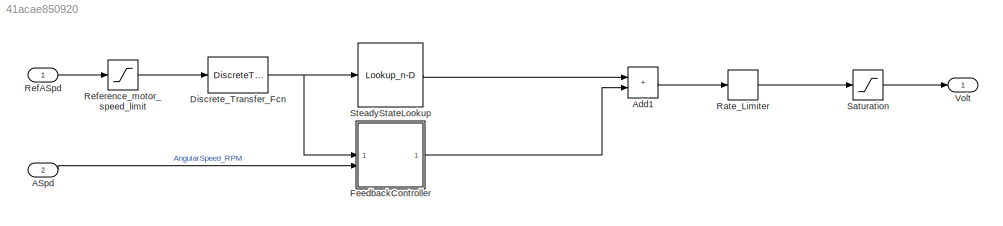
MODEL slx_41acae850920
KIND model
CONFIG AbsTol = auto
CONFIG EnableMultiTasking = off
CONFIG FixedStep = 0.001
CONFIG MaxStep = 0.001
CONFIG MinStep = auto
CONFIG RelTol = 1e-5
CONFIG SampleTimeConstraint = Unconstrained
CONFIG SolverName = FixedStepDiscrete
CONFIG StartTime = 0.0
CONFIG StopTime = 120
BLOCK [Inport] ASpd
  OutDataTypeStr = double
  OutMax = 6000
  OutMin = -6000
  Port = 2
  PortDimensions = 1
  SampleTime = 0.001
  SamplingMode = Sample based
  SignalType = real
BLOCK [Sum] Add1
  IconShape = rectangular
BLOCK [DiscreteTransferFcn] Discrete_Transfer_Fcn
  Denominator = [1,-0.367879441171442]
  InputPortMap = u0
  Numerator = [0.367879441171442,0.264241117657115]
  SampleTime = 0.001
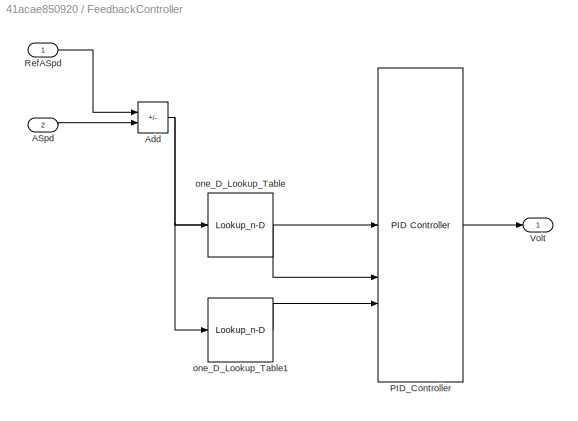
BLOCK [SubSystem] FeedbackController
BLOCK [Inport] FeedbackController/ASpd
  OutMax = 6000
  OutMin = -6000
  Port = 2
BLOCK [Sum] FeedbackController/Add
  IconShape = rectangular
  Inputs = +-
BLOCK [Reference] FeedbackController/PID_Controller  REF=slpidlib/PID Controller
  SourceBlock = slpidlib/PID Controller
  SourceType = PID 1dof
BLOCK [Inport] FeedbackController/RefASpd
  OutMax = 6000
  OutMin = -6000
BLOCK [Outport] FeedbackController/Volt
  OutMax = 10
  OutMin = -10
  VectorParamsAs1DForOutWhenUnconnected = off
BLOCK [Lookup_n-D] FeedbackController/one_D_Lookup_Table
  BreakpointsForDimension1 = [0 12.8 33.8 450]
  InputPortMap = u0
  InternalRulePriority = Speed
  NumberOfTableDimensions = 1
  RemoveProtectionInput = on
  RndMeth = Simplest
  Table = [1 1 1 1]*5e-4
BLOCK [Lookup_n-D] FeedbackController/one_D_Lookup_Table1
  BreakpointsForDimension1 = [0 12.8 33.8 450]
  InputPortMap = u0
  InternalRulePriority = Speed
  NumberOfTableDimensions = 1
  RemoveProtectionInput = on
  RndMeth = Simplest
  Table = [1 1 1 1]*5e-4
BLOCK [RateLimiter] Rate_Limiter
  FallingSlewLimit = -10
  RisingSlewLimit = 10
  SampleTimeMode = inherited
BLOCK [Inport] RefASpd
  OutDataTypeStr = double
  OutMax = 25000
  OutMin = -25000
  PortDimensions = 1
  SampleTime = 0.001
  SamplingMode = Sample based
  SignalType = real
BLOCK [Saturate] Reference_motor_speed_limit
  LowerLimit = -5200
  UpperLimit = 5200
BLOCK [Saturate] Saturation
  Commented = through
  LowerLimit = -10
  UpperLimit = 10
BLOCK [Lookup_n-D] SteadyStateLookup
  BreakpointsForDimension1 = [0 0.136 0.170 0.205 1.08 2.58 8.02 12.8 33.8 828.2 1535.4 2171.5 2526 3000 3827.2 4246 4775.6 4991.1 5209.4]
  ExtrapMethod = Clip
  InputPortMap = u0
  InternalRulePriority = Speed
  NumberOfTableDimensions = 1
  RemoveProtectionInput = on
  RndMeth = Simplest
  Table = [0 0.25 0.3 0.35 0.355 0.36 0.38 0.4 0.5 1 1.5 2 2.3 2.72 3.5 3.9 4.4 4.6 4.8]
  UseLastTableValue = on
BLOCK [Outport] Volt
  OutDataTypeStr = double
  OutMax = 20
  OutMin = -20
  PortDimensions = 1
  SampleTime = 0.001
  SamplingMode = Sample based
  SignalType = real
  VectorParamsAs1DForOutWhenUnconnected = off
LINE ASpd:1 -> FeedbackController:2
LINE Add1:1 -> Rate_Limiter:1
NET Discrete_Transfer_Fcn:1 -> FeedbackController:1, SteadyStateLookup:1
LINE FeedbackController/ASpd:1 -> FeedbackController/Add:2
NET FeedbackController/Add:1 -> FeedbackController/PID_Controller:1, FeedbackController/one_D_Lookup_Table1:1, FeedbackController/one_D_Lookup_Table:1
LINE FeedbackController/PID_Controller:1 -> FeedbackController/Volt:1
LINE FeedbackController/RefASpd:1 -> FeedbackController/Add:1
LINE FeedbackController/one_D_Lookup_Table1:1 -> FeedbackController/PID_Controller:3
LINE FeedbackController/one_D_Lookup_Table:1 -> FeedbackController/PID_Controller:2
LINE FeedbackController:1 -> Add1:2
LINE Rate_Limiter:1 -> Saturation:1
LINE RefASpd:1 -> Reference_motor_speed_limit:1
LINE Reference_motor_speed_limit:1 -> Discrete_Transfer_Fcn:1
LINE Saturation:1 -> Volt:1
LINE SteadyStateLookup:1 -> Add1:1
note: NET lines group one-source signal fan-out (src -> all destinations, sorted); 1:1 wires keep LINE
